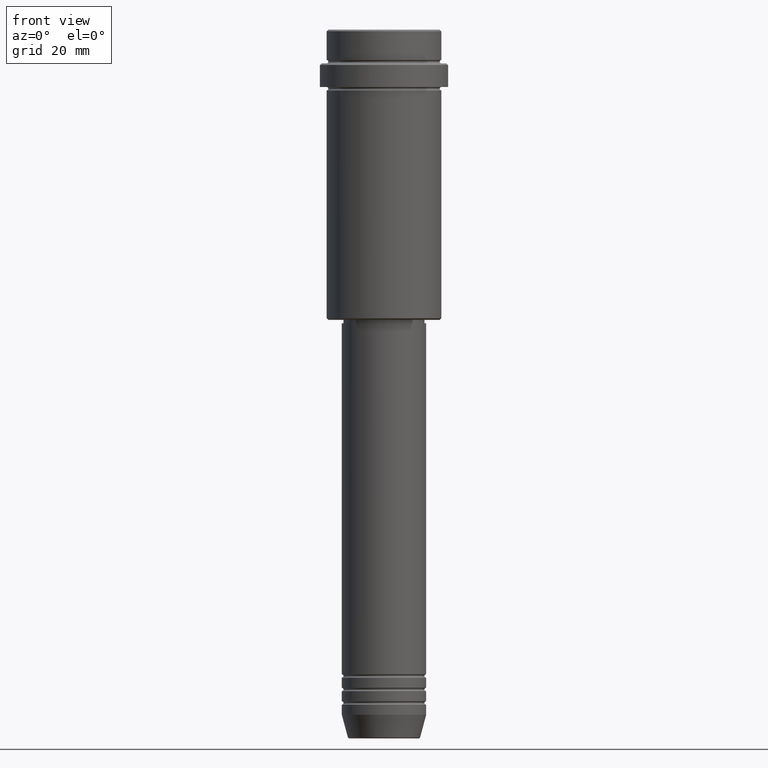
[diagram: clean part render]
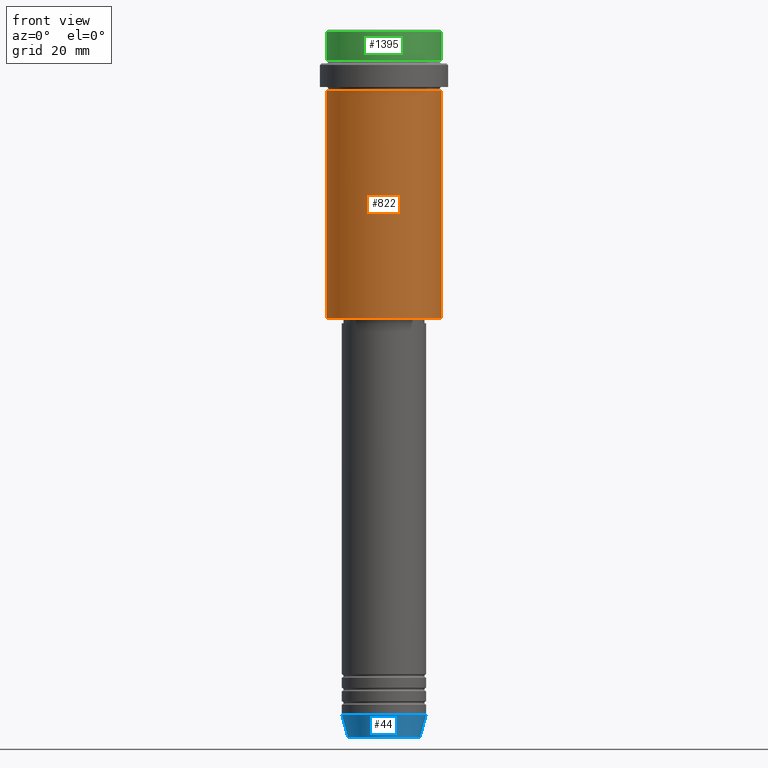
[diagram: same view with three faces highlighted in distinct colors, each labeled with its STEP entity id]
A machine part, front view with three faces highlighted in distinct colors.
Their STEP definitions:

[orange] entity #822 — the highlighted cylindrical surface (partial cylindrical patch) has radius 17 mm, axis along (-0, -0, 1).
#67 = CARTESIAN_POINT ( 'NONE',  ( 16.99999999999998579, 0.000000000000000000, 0.000000000000000000 ) ) ;
#126 = EDGE_CURVE ( 'NONE', #273, #1260, #781, .T. ) ;
#167 = CYLINDRICAL_SURFACE ( 'NONE', #261, 16.99999999999998579 ) ;
#181 = VERTEX_POINT ( 'NONE', #655 ) ;
#190 = ORIENTED_EDGE ( 'NONE', *, *, #126, .F. ) ;
#251 = EDGE_CURVE ( 'NONE', #181, #951, #358, .T. ) ;
#261 = AXIS2_PLACEMENT_3D ( 'NONE', #1030, #267, #933 ) ;
#267 = DIRECTION ( 'NONE',  ( -0.000000000000000000, -0.000000000000000000, 1.000000000000000000 ) ) ;
#273 = VERTEX_POINT ( 'NONE', #1335 ) ;
#337 = CARTESIAN_POINT ( 'NONE',  ( 0.000000000000000000, 0.000000000000000000, -85.49999999999998579 ) ) ;
#340 = ORIENTED_EDGE ( 'NONE', *, *, #251, .T. ) ;
#346 = DIRECTION ( 'NONE',  ( -0.000000000000000000, -0.000000000000000000, 1.000000000000000000 ) ) ;
#358 = CIRCLE ( 'NONE', #554, 16.99999999999998579 ) ;
#372 = ORIENTED_EDGE ( 'NONE', *, *, #397, .T. ) ;
#397 = EDGE_CURVE ( 'NONE', #951, #1260, #1276, .T. ) ;
#488 = ORIENTED_EDGE ( 'NONE', *, *, #520, .F. ) ;
#520 = EDGE_CURVE ( 'NONE', #181, #273, #1175, .T. ) ;
#554 = AXIS2_PLACEMENT_3D ( 'NONE', #337, #346, #1344 ) ;
#647 = EDGE_LOOP ( 'NONE', ( #488, #340, #372, #190 ) ) ;
#649 = DIRECTION ( 'NONE',  ( -0.000000000000000000, -0.000000000000000000, 1.000000000000000000 ) ) ;
#655 = CARTESIAN_POINT ( 'NONE',  ( -16.99999999999998579, 2.081899558550499096E-15, -85.49999999999998579 ) ) ;
#781 = CIRCLE ( 'NONE', #1264, 16.99999999999997513 ) ;
#782 = VECTOR ( 'NONE', #1296, 1000.000000000000000 ) ;
#822 = ADVANCED_FACE ( 'NONE', ( #1141 ), #167, .T. ) ;
#836 = DIRECTION ( 'NONE',  ( -0.000000000000000000, -0.000000000000000000, 1.000000000000000000 ) ) ;
#854 = CARTESIAN_POINT ( 'NONE',  ( 0.000000000000000000, 0.000000000000000000, -18.00000000000000711 ) ) ;
#933 = DIRECTION ( 'NONE',  ( 1.000000000000000000, 0.000000000000000000, 0.000000000000000000 ) ) ;
#951 = VERTEX_POINT ( 'NONE', #1243 ) ;
#957 = VECTOR ( 'NONE', #836, 1000.000000000000000 ) ;
#1030 = CARTESIAN_POINT ( 'NONE',  ( 0.000000000000000000, 0.000000000000000000, 0.000000000000000000 ) ) ;
#1045 = CARTESIAN_POINT ( 'NONE',  ( 16.99999999999997513, 0.000000000000000000, -18.00000000000000711 ) ) ;
#1062 = DIRECTION ( 'NONE',  ( 1.000000000000000000, 0.000000000000000000, 0.000000000000000000 ) ) ;
#1083 = CARTESIAN_POINT ( 'NONE',  ( -16.99999999999998579, 2.081899558550499096E-15, 0.000000000000000000 ) ) ;
#1141 = FACE_OUTER_BOUND ( 'NONE', #647, .T. ) ;
#1175 = LINE ( 'NONE', #1083, #782 ) ;
#1243 = CARTESIAN_POINT ( 'NONE',  ( 16.99999999999998579, 0.000000000000000000, -85.49999999999998579 ) ) ;
#1260 = VERTEX_POINT ( 'NONE', #1045 ) ;
#1264 = AXIS2_PLACEMENT_3D ( 'NONE', #854, #649, #1062 ) ;
#1276 = LINE ( 'NONE', #67, #957 ) ;
#1296 = DIRECTION ( 'NONE',  ( -0.000000000000000000, -0.000000000000000000, 1.000000000000000000 ) ) ;
#1335 = CARTESIAN_POINT ( 'NONE',  ( -16.99999999999997513, 2.081899558550498307E-15, -18.00000000000000711 ) ) ;
#1344 = DIRECTION ( 'NONE',  ( -1.000000000000000000, 0.000000000000000000, 0.000000000000000000 ) ) ;

[blue] entity #44 — the highlighted conical surface has half-angle 15 deg.
#24 = DIRECTION ( 'NONE',  ( -0.000000000000000000, -0.000000000000000000, 1.000000000000000000 ) ) ;
#44 = ADVANCED_FACE ( 'NONE', ( #1339 ), #601, .T. ) ;
#56 = VECTOR ( 'NONE', #1100, 1000.000000000000000 ) ;
#150 = AXIS2_PLACEMENT_3D ( 'NONE', #1121, #154, #811 ) ;
#154 = DIRECTION ( 'NONE',  ( -0.000000000000000000, -0.000000000000000000, 1.000000000000000000 ) ) ;
#157 = EDGE_LOOP ( 'NONE', ( #1021, #249, #1153, #1137 ) ) ;
#214 = AXIS2_PLACEMENT_3D ( 'NONE', #884, #1214, #852 ) ;
#236 = VECTOR ( 'NONE', #953, 1000.000000000000000 ) ;
#249 = ORIENTED_EDGE ( 'NONE', *, *, #976, .T. ) ;
#291 = CIRCLE ( 'NONE', #150, 10.72365507213718416 ) ;
#310 = EDGE_CURVE ( 'NONE', #1275, #973, #477, .T. ) ;
#379 = VERTEX_POINT ( 'NONE', #580 ) ;
#419 = CARTESIAN_POINT ( 'NONE',  ( -10.72365507213718416, 1.422038742429750121E-15, -209.6294095225512990 ) ) ;
#435 = AXIS2_PLACEMENT_3D ( 'NONE', #790, #24, #454 ) ;
#454 = DIRECTION ( 'NONE',  ( 1.000000000000000000, 0.000000000000000000, 0.000000000000000000 ) ) ;
#477 = LINE ( 'NONE', #1106, #56 ) ;
#580 = CARTESIAN_POINT ( 'NONE',  ( -12.50000000000000000, 1.530808498934191521E-15, -203.0000000000000000 ) ) ;
#601 = CONICAL_SURFACE ( 'NONE', #435, 12.50000000000000000, 0.2617993877991500740 ) ;
#604 = EDGE_CURVE ( 'NONE', #379, #973, #1358, .T. ) ;
#699 = CARTESIAN_POINT ( 'NONE',  ( 12.50000000000000000, 0.000000000000000000, -203.0000000000000000 ) ) ;
#737 = LINE ( 'NONE', #757, #236 ) ;
#757 = CARTESIAN_POINT ( 'NONE',  ( -12.50000000000000000, 1.530808498934191521E-15, -203.0000000000000000 ) ) ;
#790 = CARTESIAN_POINT ( 'NONE',  ( 0.000000000000000000, 0.000000000000000000, -203.0000000000000000 ) ) ;
#811 = DIRECTION ( 'NONE',  ( 1.000000000000000000, 0.000000000000000000, 0.000000000000000000 ) ) ;
#852 = DIRECTION ( 'NONE',  ( 1.000000000000000000, 0.000000000000000000, 0.000000000000000000 ) ) ;
#884 = CARTESIAN_POINT ( 'NONE',  ( 0.000000000000000000, 0.000000000000000000, -203.0000000000000000 ) ) ;
#953 = DIRECTION ( 'NONE',  ( -0.2588190451025213501, 3.169619151431772337E-17, 0.9659258262890680902 ) ) ;
#973 = VERTEX_POINT ( 'NONE', #699 ) ;
#976 = EDGE_CURVE ( 'NONE', #1361, #1275, #291, .T. ) ;
#1021 = ORIENTED_EDGE ( 'NONE', *, *, #1305, .F. ) ;
#1026 = CARTESIAN_POINT ( 'NONE',  ( 10.72365507213718416, 0.000000000000000000, -209.6294095225512990 ) ) ;
#1100 = DIRECTION ( 'NONE',  ( 0.2588190451025213501, 0.000000000000000000, 0.9659258262890680902 ) ) ;
#1106 = CARTESIAN_POINT ( 'NONE',  ( 12.50000000000000000, 0.000000000000000000, -203.0000000000000000 ) ) ;
#1121 = CARTESIAN_POINT ( 'NONE',  ( 0.000000000000000000, 0.000000000000000000, -209.6294095225512990 ) ) ;
#1137 = ORIENTED_EDGE ( 'NONE', *, *, #604, .F. ) ;
#1153 = ORIENTED_EDGE ( 'NONE', *, *, #310, .T. ) ;
#1214 = DIRECTION ( 'NONE',  ( -0.000000000000000000, -0.000000000000000000, 1.000000000000000000 ) ) ;
#1275 = VERTEX_POINT ( 'NONE', #1026 ) ;
#1305 = EDGE_CURVE ( 'NONE', #1361, #379, #737, .T. ) ;
#1339 = FACE_OUTER_BOUND ( 'NONE', #157, .T. ) ;
#1358 = CIRCLE ( 'NONE', #214, 12.50000000000000000 ) ;
#1361 = VERTEX_POINT ( 'NONE', #419 ) ;

[green] entity #1395 — the highlighted cylindrical surface (partial cylindrical patch) has radius 17 mm, axis along (-0, -0, 1).
#28 = CARTESIAN_POINT ( 'NONE',  ( -16.99999999999998579, 2.081899558550499096E-15, 0.000000000000000000 ) ) ;
#31 = VERTEX_POINT ( 'NONE', #1303 ) ;
#174 = VERTEX_POINT ( 'NONE', #1298 ) ;
#226 = DIRECTION ( 'NONE',  ( -0.000000000000000000, -0.000000000000000000, 1.000000000000000000 ) ) ;
#292 = EDGE_CURVE ( 'NONE', #1221, #31, #351, .T. ) ;
#347 = DIRECTION ( 'NONE',  ( -0.000000000000000000, -0.000000000000000000, 1.000000000000000000 ) ) ;
#351 = LINE ( 'NONE', #28, #624 ) ;
#360 = LINE ( 'NONE', #1347, #1066 ) ;
#396 = AXIS2_PLACEMENT_3D ( 'NONE', #1342, #347, #1232 ) ;
#519 = VERTEX_POINT ( 'NONE', #1308 ) ;
#543 = CYLINDRICAL_SURFACE ( 'NONE', #910, 16.99999999999998579 ) ;
#624 = VECTOR ( 'NONE', #1006, 1000.000000000000000 ) ;
#644 = EDGE_CURVE ( 'NONE', #519, #174, #360, .T. ) ;
#648 = DIRECTION ( 'NONE',  ( 0.000000000000000000, 0.000000000000000000, -1.000000000000000000 ) ) ;
#805 = CARTESIAN_POINT ( 'NONE',  ( 0.000000000000000000, 0.000000000000000000, -0.5000000000000108802 ) ) ;
#806 = CIRCLE ( 'NONE', #396, 16.99999999999997513 ) ;
#820 = ORIENTED_EDGE ( 'NONE', *, *, #644, .T. ) ;
#909 = EDGE_CURVE ( 'NONE', #1221, #519, #806, .T. ) ;
#910 = AXIS2_PLACEMENT_3D ( 'NONE', #1306, #226, #964 ) ;
#920 = DIRECTION ( 'NONE',  ( -0.000000000000000000, -0.000000000000000000, 1.000000000000000000 ) ) ;
#936 = ORIENTED_EDGE ( 'NONE', *, *, #1151, .T. ) ;
#964 = DIRECTION ( 'NONE',  ( 1.000000000000000000, 0.000000000000000000, 0.000000000000000000 ) ) ;
#1006 = DIRECTION ( 'NONE',  ( -0.000000000000000000, -0.000000000000000000, 1.000000000000000000 ) ) ;
#1056 = FACE_OUTER_BOUND ( 'NONE', #1274, .T. ) ;
#1066 = VECTOR ( 'NONE', #920, 1000.000000000000000 ) ;
#1070 = DIRECTION ( 'NONE',  ( 1.000000000000000000, 0.000000000000000000, 0.000000000000000000 ) ) ;
#1151 = EDGE_CURVE ( 'NONE', #174, #31, #1217, .T. ) ;
#1158 = AXIS2_PLACEMENT_3D ( 'NONE', #805, #648, #1070 ) ;
#1212 = ORIENTED_EDGE ( 'NONE', *, *, #909, .T. ) ;
#1217 = CIRCLE ( 'NONE', #1158, 16.99999999999998579 ) ;
#1221 = VERTEX_POINT ( 'NONE', #1263 ) ;
#1232 = DIRECTION ( 'NONE',  ( 1.000000000000000000, 0.000000000000000000, 0.000000000000000000 ) ) ;
#1263 = CARTESIAN_POINT ( 'NONE',  ( -16.99999999999997513, 2.081899558550498307E-15, -8.999999999999998224 ) ) ;
#1274 = EDGE_LOOP ( 'NONE', ( #1364, #1212, #820, #936 ) ) ;
#1298 = CARTESIAN_POINT ( 'NONE',  ( 16.99999999999998579, 0.000000000000000000, -0.5000000000000108802 ) ) ;
#1303 = CARTESIAN_POINT ( 'NONE',  ( -16.99999999999998579, 2.081899558550499096E-15, -0.5000000000000108802 ) ) ;
#1306 = CARTESIAN_POINT ( 'NONE',  ( 0.000000000000000000, 0.000000000000000000, 0.000000000000000000 ) ) ;
#1308 = CARTESIAN_POINT ( 'NONE',  ( 16.99999999999997513, 0.000000000000000000, -8.999999999999998224 ) ) ;
#1342 = CARTESIAN_POINT ( 'NONE',  ( 0.000000000000000000, 0.000000000000000000, -8.999999999999998224 ) ) ;
#1347 = CARTESIAN_POINT ( 'NONE',  ( 16.99999999999998579, 0.000000000000000000, 0.000000000000000000 ) ) ;
#1364 = ORIENTED_EDGE ( 'NONE', *, *, #292, .F. ) ;
#1395 = ADVANCED_FACE ( 'NONE', ( #1056 ), #543, .T. ) ;